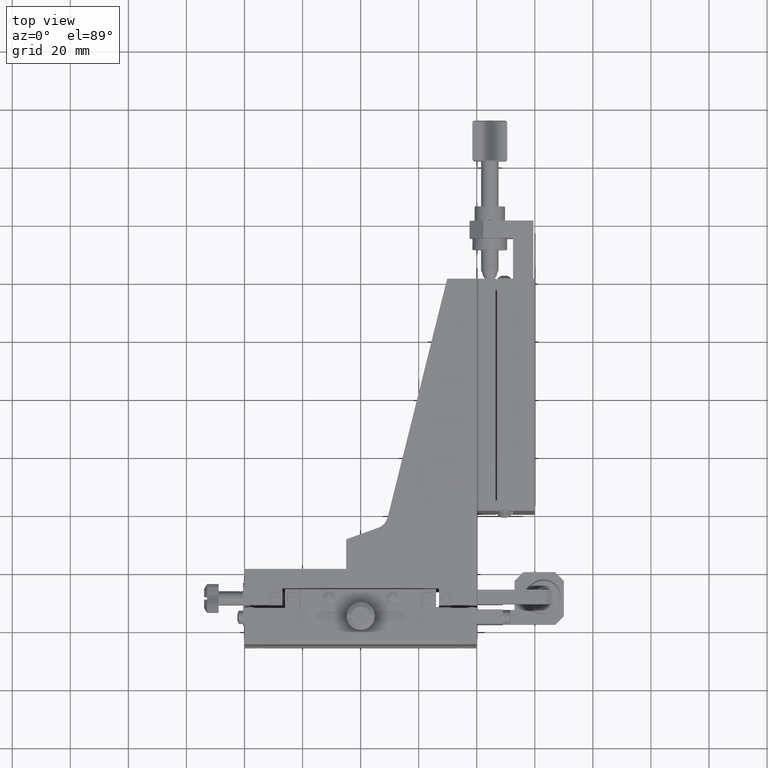
[diagram: clean part render]
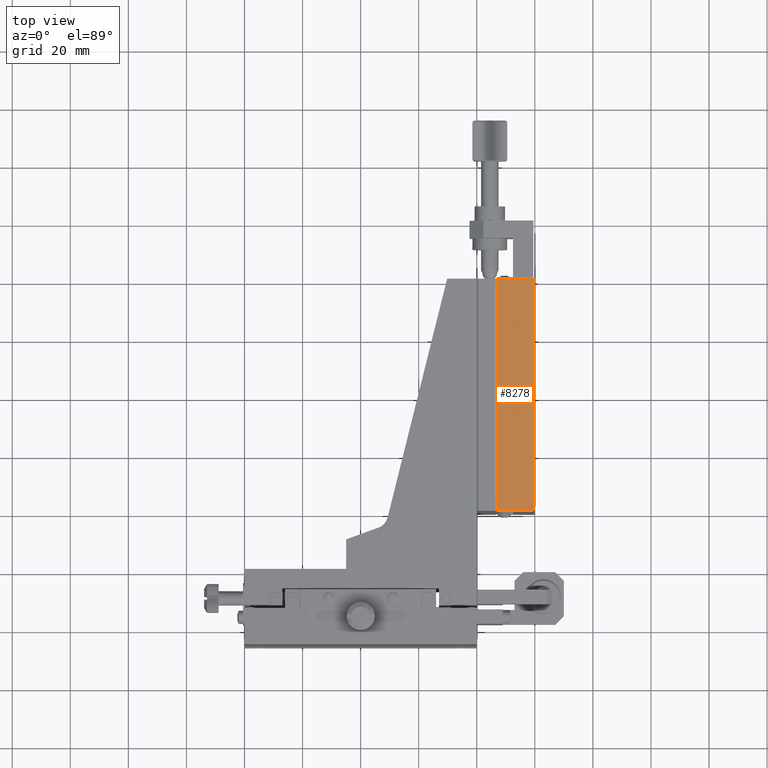
[diagram: same view with one face highlighted and labeled with its STEP entity id]
A machine part, top view. The second image highlights one B-rep face of the part: STEP entity #8278.
In plain terms, the highlighted planar face has unit normal (0, 0, -1).
Its self-contained STEP definition (entity closure, byte-faithful):
#534 = DIRECTION ( 'NONE',  ( 0.000000000000000000, 1.000000000000000000, 0.000000000000000000 ) ) ;
#7039 = ORIENTED_EDGE ( 'NONE', *, *, #18859, .T. ) ;
#8278 = ADVANCED_FACE ( 'NONE', ( #76066 ), #9373, .F. ) ;
#9373 = PLANE ( 'NONE',  #20287 ) ;
#13413 = CARTESIAN_POINT ( 'NONE',  ( 6.999999999999999112, 20.00000000000000355, 0.000000000000000000 ) ) ;
#15760 = ORIENTED_EDGE ( 'NONE', *, *, #48990, .F. ) ;
#15766 = DIRECTION ( 'NONE',  ( 0.000000000000000000, 0.000000000000000000, -1.000000000000000000 ) ) ;
#16499 = VECTOR ( 'NONE', #534, 1000.000000000000000 ) ;
#18859 = EDGE_CURVE ( 'NONE', #76334, #76535, #68351, .T. ) ;
#19808 = CARTESIAN_POINT ( 'NONE',  ( 19.58999999999999986, 100.0000000000000000, 3.388131789017161682E-18 ) ) ;
#20287 = AXIS2_PLACEMENT_3D ( 'NONE', #26584, #15766, #45335 ) ;
#20711 = DIRECTION ( 'NONE',  ( 1.000000000000000000, 0.000000000000000000, -0.000000000000000000 ) ) ;
#25249 = CARTESIAN_POINT ( 'NONE',  ( 6.400000000000001243, 20.00000000000000000, 0.000000000000000000 ) ) ;
#26162 = CARTESIAN_POINT ( 'NONE',  ( 19.59000000000000341, 100.0000000000000000, -2.162051597866601122E-16 ) ) ;
#26305 = CARTESIAN_POINT ( 'NONE',  ( 6.999999999999999112, 100.0000000000000000, 0.000000000000000000 ) ) ;
#26584 = CARTESIAN_POINT ( 'NONE',  ( 6.999999999999999112, 100.0000000000000000, 0.000000000000000000 ) ) ;
#34184 = VECTOR ( 'NONE', #62352, 1000.000000000000000 ) ;
#36024 = ORIENTED_EDGE ( 'NONE', *, *, #47277, .T. ) ;
#38972 = LINE ( 'NONE', #19808, #47375 ) ;
#39331 = ORIENTED_EDGE ( 'NONE', *, *, #66984, .F. ) ;
#45335 = DIRECTION ( 'NONE',  ( -1.000000000000000000, 0.000000000000000000, -0.000000000000000000 ) ) ;
#46991 = VERTEX_POINT ( 'NONE', #26305 ) ;
#47277 = EDGE_CURVE ( 'NONE', #76535, #68647, #38972, .T. ) ;
#47375 = VECTOR ( 'NONE', #62908, 1000.000000000000000 ) ;
#48708 = EDGE_LOOP ( 'NONE', ( #15760, #39331, #7039, #36024 ) ) ;
#48990 = EDGE_CURVE ( 'NONE', #46991, #68647, #69010, .T. ) ;
#54072 = CARTESIAN_POINT ( 'NONE',  ( 6.999999999999999112, 100.0000000000000000, 0.000000000000000000 ) ) ;
#54854 = LINE ( 'NONE', #54072, #16499 ) ;
#62352 = DIRECTION ( 'NONE',  ( 1.000000000000000000, 0.000000000000000000, -0.000000000000000000 ) ) ;
#62908 = DIRECTION ( 'NONE',  ( 0.000000000000000000, 1.000000000000000000, 0.000000000000000000 ) ) ;
#63023 = CARTESIAN_POINT ( 'NONE',  ( 6.400000000000001243, 100.0000000000000000, 0.000000000000000000 ) ) ;
#64073 = CARTESIAN_POINT ( 'NONE',  ( 19.59000000000000341, 20.00000000000000355, -4.330455942837609497E-16 ) ) ;
#65493 = VECTOR ( 'NONE', #20711, 1000.000000000000000 ) ;
#66984 = EDGE_CURVE ( 'NONE', #76334, #46991, #54854, .T. ) ;
#68351 = LINE ( 'NONE', #25249, #34184 ) ;
#68647 = VERTEX_POINT ( 'NONE', #26162 ) ;
#69010 = LINE ( 'NONE', #63023, #65493 ) ;
#76066 = FACE_OUTER_BOUND ( 'NONE', #48708, .T. ) ;
#76334 = VERTEX_POINT ( 'NONE', #13413 ) ;
#76535 = VERTEX_POINT ( 'NONE', #64073 ) ;